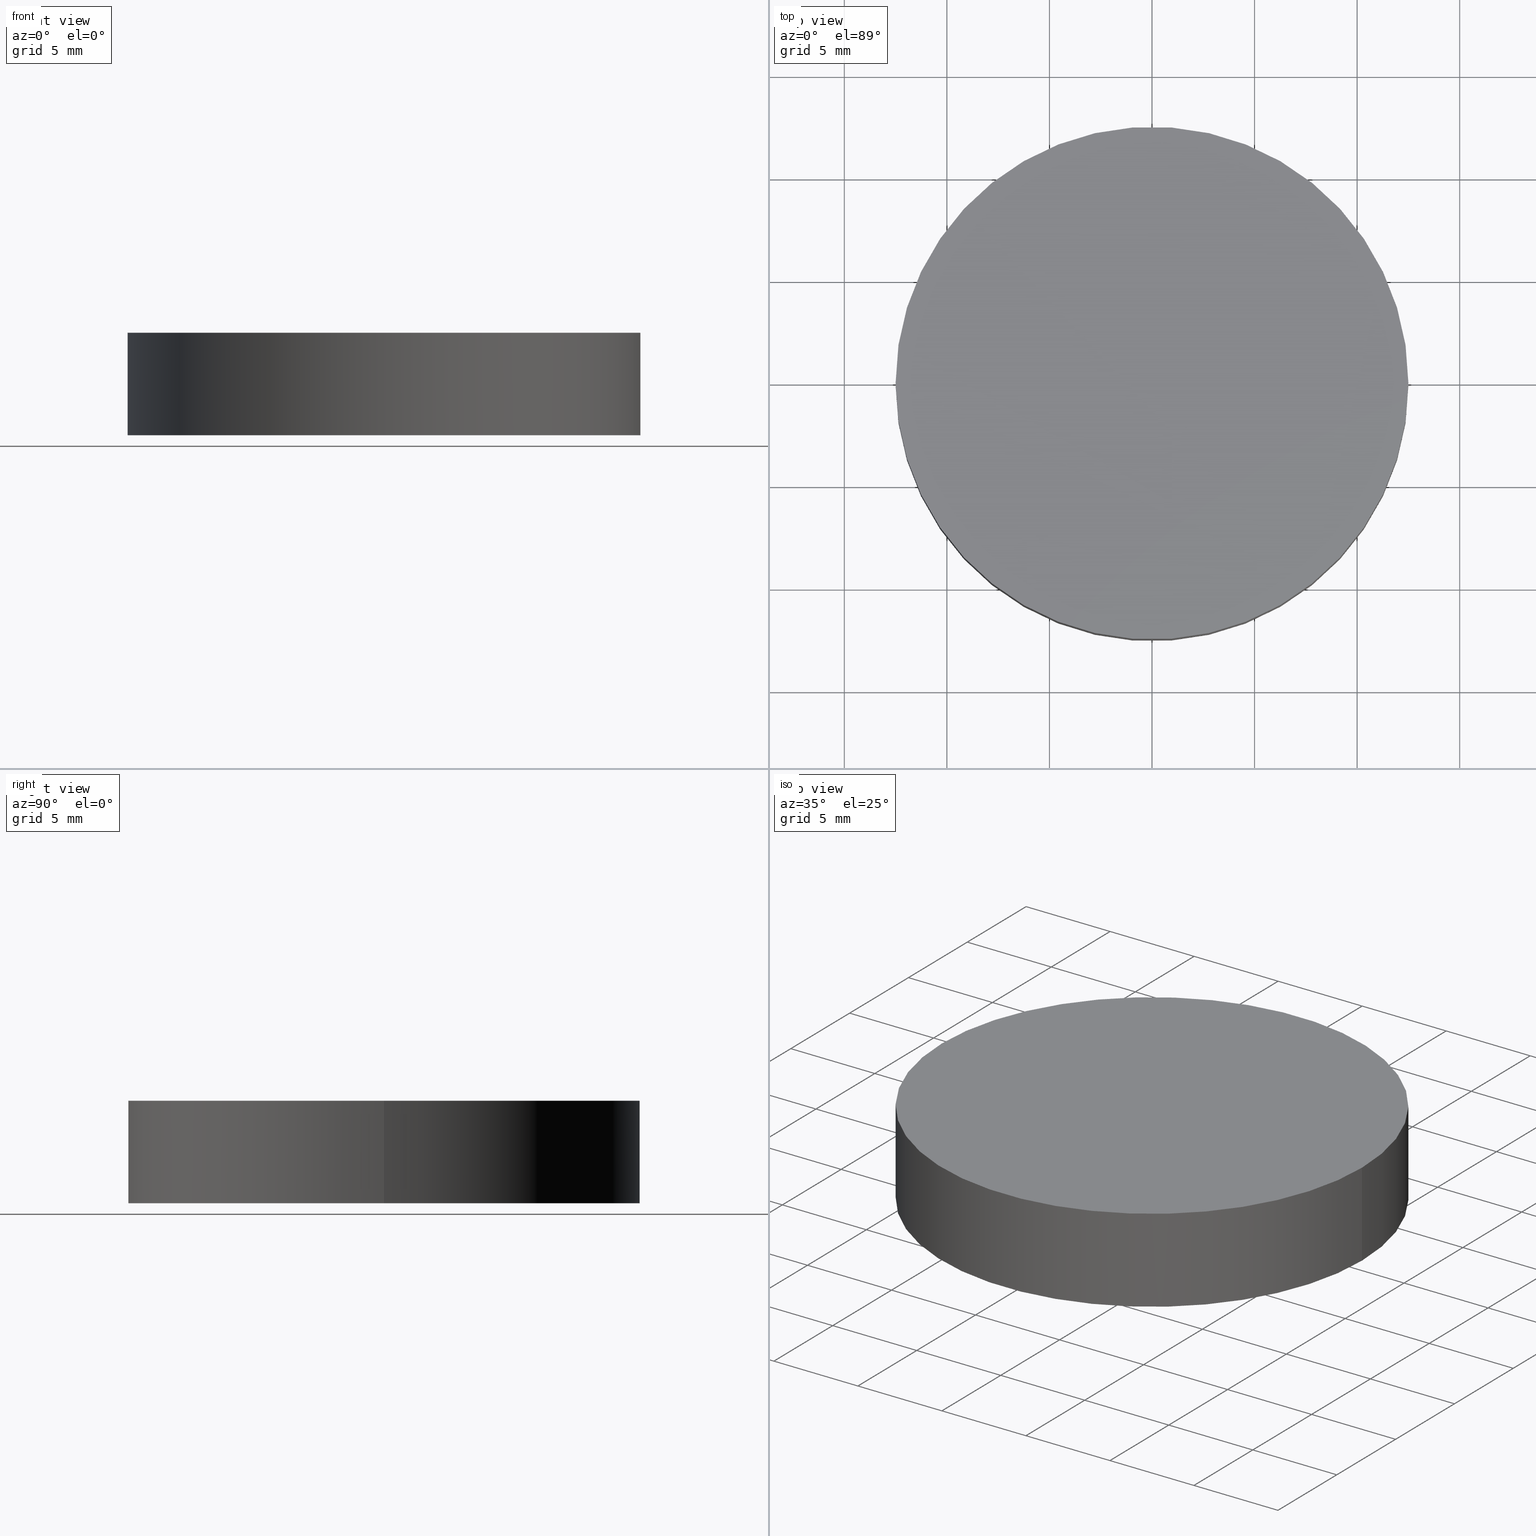
[diagram: canonical four-view strip — front | top / right | iso, engineering-drawing reading convention]
A machine part, canonical four-view strip (front | top / right | iso — engineering-drawing reading convention). The complete STEP part file that produces these views, byte-faithful:
ISO-10303-21;
HEADER;
FILE_DESCRIPTION (( 'STEP AP214' ),
    '1' );
FILE_NAME ('190154.STEP',
    '2019-07-18T06:12:35',
    ( 'user' ),
    ( '΢���й�' ),
    'SwSTEP 2.0',
    'SolidWorks 2016',
    '' );
FILE_SCHEMA (( 'AUTOMOTIVE_DESIGN' ));
ENDSEC;

DATA;
#1 = UNCERTAINTY_MEASURE_WITH_UNIT (LENGTH_MEASURE( 1.000000000000000100E-005 ), #124, 'distance_accuracy_value', 'NONE');
#2 = EDGE_CURVE ( 'NONE', #60, #123, #27, .T. ) ;
#3 = ORIENTED_EDGE ( 'NONE', *, *, #74, .T. ) ;
#4 = AXIS2_PLACEMENT_3D ( 'NONE', #69, #126, #56 ) ;
#5 = APPLICATION_PROTOCOL_DEFINITION ( 'draft international standard', 'automotive_design', 1998, #85 ) ;
#6 = APPLICATION_CONTEXT ( 'automotive_design' ) ;
#7 =( LENGTH_UNIT ( ) NAMED_UNIT ( * ) SI_UNIT ( .MILLI., .METRE. ) );
#8 = DIRECTION ( 'NONE',  ( 1.000000000000000000, 0.0000000000000000000, 0.0000000000000000000 ) ) ;
#9 = AXIS2_PLACEMENT_3D ( 'NONE', #36, #23, #88 ) ;
#10 = DIRECTION ( 'NONE',  ( -1.000000000000000000, 0.0000000000000000000, 0.0000000000000000000 ) ) ;
#11 = FILL_AREA_STYLE ('',( #89 ) ) ;
#12 = CARTESIAN_POINT ( 'NONE',  ( 0.0000000000000000000, 0.0000000000000000000, 0.0000000000000000000 ) ) ;
#13 = UNCERTAINTY_MEASURE_WITH_UNIT (LENGTH_MEASURE( 1.000000000000000100E-005 ), #7, 'distance_accuracy_value', 'NONE');
#14 = EDGE_LOOP ( 'NONE', ( #70, #18, #48, #113 ) ) ;
#15 = AXIS2_PLACEMENT_3D ( 'NONE', #12, #139, #121 ) ;
#16 =( GEOMETRIC_REPRESENTATION_CONTEXT ( 3 ) GLOBAL_UNCERTAINTY_ASSIGNED_CONTEXT ( ( #13 ) ) GLOBAL_UNIT_ASSIGNED_CONTEXT ( ( #7, #104, #35 ) ) REPRESENTATION_CONTEXT ( 'NONE', 'WORKASPACE' ) );
#17 = CIRCLE ( 'NONE', #4, 12.50000000000000000 ) ;
#18 = ORIENTED_EDGE ( 'NONE', *, *, #110, .T. ) ;
#19 = PRODUCT_CONTEXT ( 'NONE', #6, 'mechanical' ) ;
#20 = APPLICATION_PROTOCOL_DEFINITION ( 'draft international standard', 'automotive_design', 1998, #6 ) ;
#21 = DIRECTION ( 'NONE',  ( 1.000000000000000000, 0.0000000000000000000, -0.0000000000000000000 ) ) ;
#22 = CARTESIAN_POINT ( 'NONE',  ( 0.0000000000000000000, 0.0000000000000000000, 0.0000000000000000000 ) ) ;
#23 = DIRECTION ( 'NONE',  ( 0.0000000000000000000, 0.0000000000000000000, 1.000000000000000000 ) ) ;
#24 = EDGE_CURVE ( 'NONE', #37, #60, #34, .T. ) ;
#25 = CARTESIAN_POINT ( 'NONE',  ( -12.50000000000000000, 0.0000000000000000000, 5.000000000000000000 ) ) ;
#26 = EDGE_LOOP ( 'NONE', ( #120, #3 ) ) ;
#27 = CIRCLE ( 'NONE', #15, 12.50000000000000000 ) ;
#28 = PRODUCT_RELATED_PRODUCT_CATEGORY ( 'part', '', ( #112 ) ) ;
#29 = SHAPE_DEFINITION_REPRESENTATION ( #128, #102 ) ;
#30 = FACE_OUTER_BOUND ( 'NONE', #14, .T. ) ;
#31 = AXIS2_PLACEMENT_3D ( 'NONE', #136, #97, #10 ) ;
#32 = ADVANCED_FACE ( 'NONE', ( #86 ), #115, .T. ) ;
#33 = DIRECTION ( 'NONE',  ( 0.0000000000000000000, 0.0000000000000000000, 1.000000000000000000 ) ) ;
#34 = LINE ( 'NONE', #90, #65 ) ;
#35 =( NAMED_UNIT ( * ) SI_UNIT ( $, .STERADIAN. ) SOLID_ANGLE_UNIT ( ) );
#36 = CARTESIAN_POINT ( 'NONE',  ( 0.0000000000000000000, 0.0000000000000000000, 0.0000000000000000000 ) ) ;
#37 = VERTEX_POINT ( 'NONE', #25 ) ;
#38 = PLANE ( 'NONE',  #9 ) ;
#39 = MANIFOLD_SOLID_BREP ( '͹̨-����1', #43 ) ;
#40 = CARTESIAN_POINT ( 'NONE',  ( 0.0000000000000000000, 0.0000000000000000000, 5.000000000000000000 ) ) ;
#41 = EDGE_LOOP ( 'NONE', ( #80, #50 ) ) ;
#42 = AXIS2_PLACEMENT_3D ( 'NONE', #44, #57, #21 ) ;
#43 = CLOSED_SHELL ( 'NONE', ( #83, #32, #93, #51 ) ) ;
#44 = CARTESIAN_POINT ( 'NONE',  ( 0.0000000000000000000, 0.0000000000000000000, 5.000000000000000000 ) ) ;
#45 = DIRECTION ( 'NONE',  ( 0.0000000000000000000, 0.0000000000000000000, 1.000000000000000000 ) ) ;
#46 = DIRECTION ( 'NONE',  ( -0.0000000000000000000, -0.0000000000000000000, -1.000000000000000000 ) ) ;
#47 = LINE ( 'NONE', #118, #81 ) ;
#48 = ORIENTED_EDGE ( 'NONE', *, *, #78, .T. ) ;
#49 = STYLED_ITEM ( 'NONE', ( #91 ), #102 ) ;
#50 = ORIENTED_EDGE ( 'NONE', *, *, #78, .F. ) ;
#51 = ADVANCED_FACE ( 'NONE', ( #140 ), #38, .F. ) ;
#52 =( GEOMETRIC_REPRESENTATION_CONTEXT ( 3 ) GLOBAL_UNCERTAINTY_ASSIGNED_CONTEXT ( ( #54 ) ) GLOBAL_UNIT_ASSIGNED_CONTEXT ( ( #71, #129, #58 ) ) REPRESENTATION_CONTEXT ( 'NONE', 'WORKASPACE' ) );
#53 = FACE_OUTER_BOUND ( 'NONE', #26, .T. ) ;
#54 = UNCERTAINTY_MEASURE_WITH_UNIT (LENGTH_MEASURE( 1.000000000000000100E-005 ), #71, 'distance_accuracy_value', 'NONE');
#55 =( NAMED_UNIT ( * ) PLANE_ANGLE_UNIT ( ) SI_UNIT ( $, .RADIAN. ) );
#56 = DIRECTION ( 'NONE',  ( 1.000000000000000000, 0.0000000000000000000, 0.0000000000000000000 ) ) ;
#57 = DIRECTION ( 'NONE',  ( 0.0000000000000000000, 0.0000000000000000000, 1.000000000000000000 ) ) ;
#58 =( NAMED_UNIT ( * ) SI_UNIT ( $, .STERADIAN. ) SOLID_ANGLE_UNIT ( ) );
#59 = DIRECTION ( 'NONE',  ( -0.0000000000000000000, -0.0000000000000000000, -1.000000000000000000 ) ) ;
#60 = VERTEX_POINT ( 'NONE', #98 ) ;
#61 = COLOUR_RGB ( '',1.000000000000000000, 1.000000000000000000, 1.000000000000000000 ) ;
#62 = COLOUR_RGB ( '',1.000000000000000000, 1.000000000000000000, 1.000000000000000000 ) ;
#63 = PRESENTATION_LAYER_ASSIGNMENT (  '', '', ( #49 ) ) ;
#64 = AXIS2_PLACEMENT_3D ( 'NONE', #40, #46, #107 ) ;
#65 = VECTOR ( 'NONE', #59, 1000.000000000000000 ) ;
#66 = EDGE_LOOP ( 'NONE', ( #84, #75, #92, #132 ) ) ;
#67 = CIRCLE ( 'NONE', #100, 12.50000000000000000 ) ;
#68 = SURFACE_STYLE_USAGE ( .BOTH. , #133 ) ;
#69 = CARTESIAN_POINT ( 'NONE',  ( 0.0000000000000000000, 0.0000000000000000000, 5.000000000000000000 ) ) ;
#70 = ORIENTED_EDGE ( 'NONE', *, *, #74, .F. ) ;
#71 =( LENGTH_UNIT ( ) NAMED_UNIT ( * ) SI_UNIT ( .MILLI., .METRE. ) );
#72 = MECHANICAL_DESIGN_GEOMETRIC_PRESENTATION_REPRESENTATION (  '', ( #49 ), #76 ) ;
#73 = PRESENTATION_LAYER_ASSIGNMENT (  '', '', ( #131 ) ) ;
#74 = EDGE_CURVE ( 'NONE', #108, #37, #130, .T. ) ;
#75 = ORIENTED_EDGE ( 'NONE', *, *, #82, .F. ) ;
#76 =( GEOMETRIC_REPRESENTATION_CONTEXT ( 3 ) GLOBAL_UNCERTAINTY_ASSIGNED_CONTEXT ( ( #1 ) ) GLOBAL_UNIT_ASSIGNED_CONTEXT ( ( #124, #55, #116 ) ) REPRESENTATION_CONTEXT ( 'NONE', 'WORKASPACE' ) );
#77 = FILL_AREA_STYLE ('',( #135 ) ) ;
#78 = EDGE_CURVE ( 'NONE', #123, #60, #67, .T. ) ;
#79 = SURFACE_SIDE_STYLE ('',( #111 ) ) ;
#80 = ORIENTED_EDGE ( 'NONE', *, *, #2, .F. ) ;
#81 = VECTOR ( 'NONE', #125, 1000.000000000000000 ) ;
#82 = EDGE_CURVE ( 'NONE', #37, #108, #17, .T. ) ;
#83 = ADVANCED_FACE ( 'NONE', ( #30 ), #114, .T. ) ;
#84 = ORIENTED_EDGE ( 'NONE', *, *, #110, .F. ) ;
#85 = APPLICATION_CONTEXT ( 'automotive_design' ) ;
#86 = FACE_OUTER_BOUND ( 'NONE', #66, .T. ) ;
#87 = DIRECTION ( 'NONE',  ( 0.0000000000000000000, 0.0000000000000000000, 1.000000000000000000 ) ) ;
#88 = DIRECTION ( 'NONE',  ( 1.000000000000000000, 0.0000000000000000000, -0.0000000000000000000 ) ) ;
#89 = FILL_AREA_STYLE_COLOUR ( '', #62 ) ;
#90 = CARTESIAN_POINT ( 'NONE',  ( -12.50000000000000000, 0.0000000000000000000, 5.000000000000000000 ) ) ;
#91 = PRESENTATION_STYLE_ASSIGNMENT (( #68 ) ) ;
#92 = ORIENTED_EDGE ( 'NONE', *, *, #24, .T. ) ;
#93 = ADVANCED_FACE ( 'NONE', ( #53 ), #96, .T. ) ;
#94 = AXIS2_PLACEMENT_3D ( 'NONE', #103, #33, #95 ) ;
#95 = DIRECTION ( 'NONE',  ( 1.000000000000000000, 0.0000000000000000000, 0.0000000000000000000 ) ) ;
#96 = PLANE ( 'NONE',  #42 ) ;
#97 = DIRECTION ( 'NONE',  ( -0.0000000000000000000, -0.0000000000000000000, -1.000000000000000000 ) ) ;
#98 = CARTESIAN_POINT ( 'NONE',  ( -12.50000000000000000, 0.0000000000000000000, 0.0000000000000000000 ) ) ;
#99 = PRODUCT_DEFINITION_CONTEXT ( 'detailed design', #85, 'design' ) ;
#100 = AXIS2_PLACEMENT_3D ( 'NONE', #22, #87, #8 ) ;
#101 = PRODUCT_DEFINITION ( 'δ֪', '', #109, #99 ) ;
#102 = ADVANCED_BREP_SHAPE_REPRESENTATION ( '190154', ( #39, #94 ), #16 ) ;
#103 = CARTESIAN_POINT ( 'NONE',  ( 0.0000000000000000000, 0.0000000000000000000, 0.0000000000000000000 ) ) ;
#104 =( NAMED_UNIT ( * ) PLANE_ANGLE_UNIT ( ) SI_UNIT ( $, .RADIAN. ) );
#105 = CARTESIAN_POINT ( 'NONE',  ( 12.50000000000000000, 1.530808498934191500E-015, 5.000000000000000000 ) ) ;
#106 = DIRECTION ( 'NONE',  ( 1.000000000000000000, 0.0000000000000000000, 0.0000000000000000000 ) ) ;
#107 = DIRECTION ( 'NONE',  ( -1.000000000000000000, 0.0000000000000000000, 0.0000000000000000000 ) ) ;
#108 = VERTEX_POINT ( 'NONE', #105 ) ;
#109 = PRODUCT_DEFINITION_FORMATION_WITH_SPECIFIED_SOURCE ( '�κ�', '', #112, .NOT_KNOWN. ) ;
#110 = EDGE_CURVE ( 'NONE', #108, #123, #47, .T. ) ;
#111 = SURFACE_STYLE_FILL_AREA ( #11 ) ;
#112 = PRODUCT ( '190154', '190154', '', ( #19 ) ) ;
#113 = ORIENTED_EDGE ( 'NONE', *, *, #24, .F. ) ;
#114 = CYLINDRICAL_SURFACE ( 'NONE', #31, 12.50000000000000000 ) ;
#115 = CYLINDRICAL_SURFACE ( 'NONE', #64, 12.50000000000000000 ) ;
#116 =( NAMED_UNIT ( * ) SI_UNIT ( $, .STERADIAN. ) SOLID_ANGLE_UNIT ( ) );
#117 = CARTESIAN_POINT ( 'NONE',  ( 12.50000000000000000, 1.530808498934191500E-015, 0.0000000000000000000 ) ) ;
#118 = CARTESIAN_POINT ( 'NONE',  ( 12.50000000000000000, 1.530808498934191500E-015, 5.000000000000000000 ) ) ;
#119 = CARTESIAN_POINT ( 'NONE',  ( 0.0000000000000000000, 0.0000000000000000000, 5.000000000000000000 ) ) ;
#120 = ORIENTED_EDGE ( 'NONE', *, *, #82, .T. ) ;
#121 = DIRECTION ( 'NONE',  ( 1.000000000000000000, 0.0000000000000000000, 0.0000000000000000000 ) ) ;
#122 = SURFACE_STYLE_FILL_AREA ( #77 ) ;
#123 = VERTEX_POINT ( 'NONE', #117 ) ;
#124 =( LENGTH_UNIT ( ) NAMED_UNIT ( * ) SI_UNIT ( .MILLI., .METRE. ) );
#125 = DIRECTION ( 'NONE',  ( -0.0000000000000000000, -0.0000000000000000000, -1.000000000000000000 ) ) ;
#126 = DIRECTION ( 'NONE',  ( 0.0000000000000000000, 0.0000000000000000000, 1.000000000000000000 ) ) ;
#127 = AXIS2_PLACEMENT_3D ( 'NONE', #119, #45, #106 ) ;
#128 = PRODUCT_DEFINITION_SHAPE ( 'NONE', 'NONE',  #101 ) ;
#129 =( NAMED_UNIT ( * ) PLANE_ANGLE_UNIT ( ) SI_UNIT ( $, .RADIAN. ) );
#130 = CIRCLE ( 'NONE', #127, 12.50000000000000000 ) ;
#131 = STYLED_ITEM ( 'NONE', ( #134 ), #39 ) ;
#132 = ORIENTED_EDGE ( 'NONE', *, *, #2, .T. ) ;
#133 = SURFACE_SIDE_STYLE ('',( #122 ) ) ;
#134 = PRESENTATION_STYLE_ASSIGNMENT (( #137 ) ) ;
#135 = FILL_AREA_STYLE_COLOUR ( '', #61 ) ;
#136 = CARTESIAN_POINT ( 'NONE',  ( 0.0000000000000000000, 0.0000000000000000000, 5.000000000000000000 ) ) ;
#137 = SURFACE_STYLE_USAGE ( .BOTH. , #79 ) ;
#138 = MECHANICAL_DESIGN_GEOMETRIC_PRESENTATION_REPRESENTATION (  '', ( #131 ), #52 ) ;
#139 = DIRECTION ( 'NONE',  ( 0.0000000000000000000, 0.0000000000000000000, 1.000000000000000000 ) ) ;
#140 = FACE_OUTER_BOUND ( 'NONE', #41, .T. ) ;
ENDSEC;
END-ISO-10303-21;
